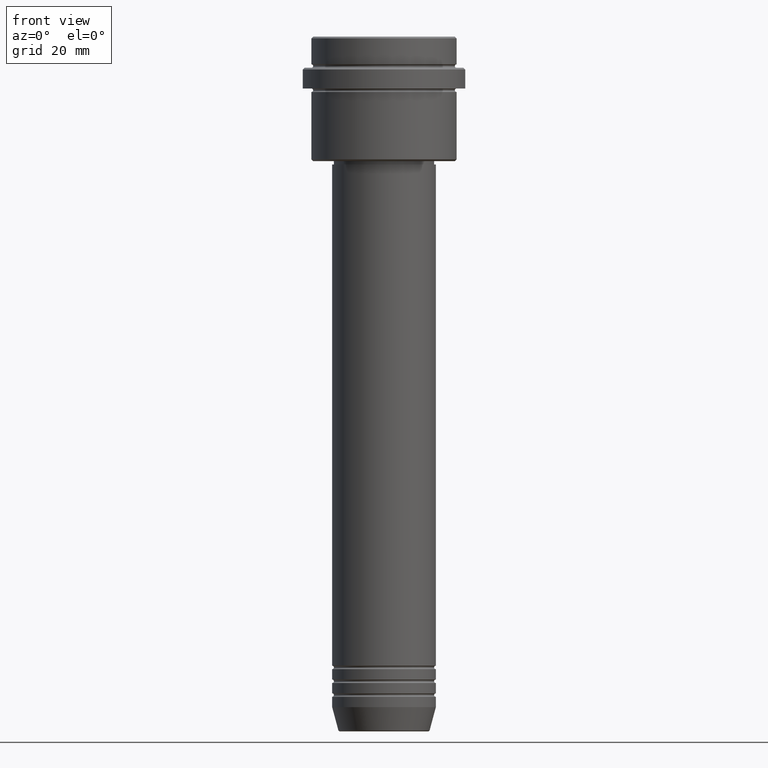
[diagram: clean part render]
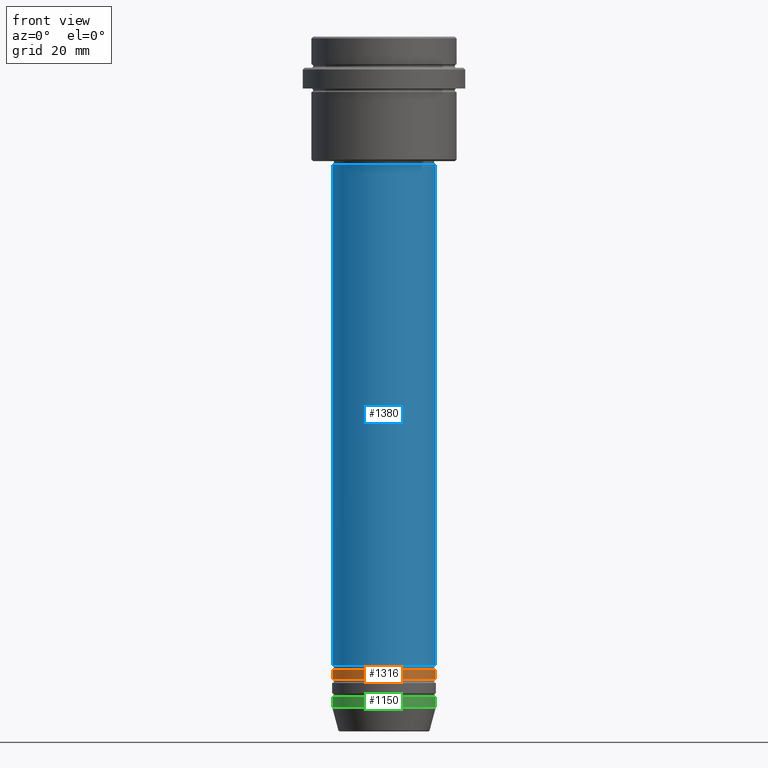
[diagram: same view with three faces highlighted in distinct colors, each labeled with its STEP entity id]
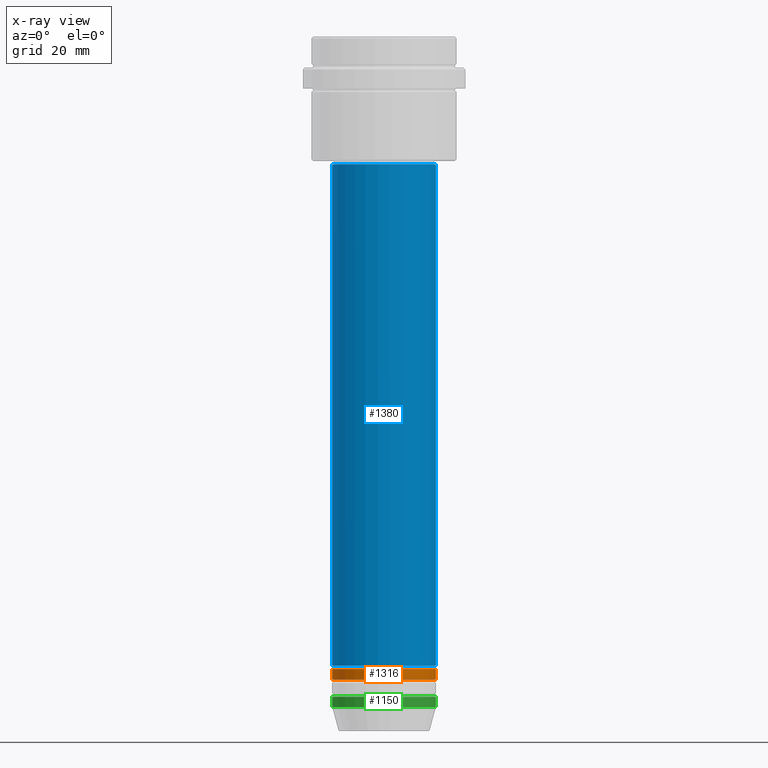
[diagram: x-ray of the same camera — body ghosted, the three highlighted faces saturated]
A machine part, front view with three faces highlighted in distinct colors.
The next image is the same camera in x-ray (body ghosted, the three faces saturated) — at least one of them is partly hidden behind the body in this view.
Their STEP definitions:

[orange] entity #1316 — the highlighted cylindrical surface (partial cylindrical patch) has radius 15 mm, axis along (-0, -0, 1).
#1 = CIRCLE ( 'NONE', #1104, 15.00000000000000000 ) ;
#15 = VERTEX_POINT ( 'NONE', #138 ) ;
#46 = CIRCLE ( 'NONE', #185, 15.00000000000000000 ) ;
#64 = CARTESIAN_POINT ( 'NONE',  ( -15.00000000000000000, 1.836970198721029589E-15, 0.000000000000000000 ) ) ;
#81 = CARTESIAN_POINT ( 'NONE',  ( 0.000000000000000000, 0.000000000000000000, -185.9999999999998863 ) ) ;
#138 = CARTESIAN_POINT ( 'NONE',  ( 15.00000000000000000, 0.000000000000000000, -185.9999999999998863 ) ) ;
#181 = EDGE_CURVE ( 'NONE', #15, #443, #475, .T. ) ;
#185 = AXIS2_PLACEMENT_3D ( 'NONE', #702, #669, #1111 ) ;
#197 = CYLINDRICAL_SURFACE ( 'NONE', #770, 15.00000000000000000 ) ;
#268 = EDGE_LOOP ( 'NONE', ( #381, #1314, #724, #1292 ) ) ;
#349 = CARTESIAN_POINT ( 'NONE',  ( 15.00000000000000000, 0.000000000000000000, -182.9999999999998863 ) ) ;
#381 = ORIENTED_EDGE ( 'NONE', *, *, #1125, .F. ) ;
#405 = LINE ( 'NONE', #64, #1355 ) ;
#443 = VERTEX_POINT ( 'NONE', #349 ) ;
#462 = EDGE_CURVE ( 'NONE', #1007, #443, #46, .T. ) ;
#475 = LINE ( 'NONE', #1059, #1399 ) ;
#497 = DIRECTION ( 'NONE',  ( -0.000000000000000000, -0.000000000000000000, 1.000000000000000000 ) ) ;
#639 = CARTESIAN_POINT ( 'NONE',  ( 0.000000000000000000, 0.000000000000000000, 0.000000000000000000 ) ) ;
#669 = DIRECTION ( 'NONE',  ( -0.000000000000000000, -0.000000000000000000, 1.000000000000000000 ) ) ;
#702 = CARTESIAN_POINT ( 'NONE',  ( 0.000000000000000000, 0.000000000000000000, -182.9999999999998863 ) ) ;
#707 = DIRECTION ( 'NONE',  ( 1.000000000000000000, 0.000000000000000000, 0.000000000000000000 ) ) ;
#724 = ORIENTED_EDGE ( 'NONE', *, *, #181, .T. ) ;
#770 = AXIS2_PLACEMENT_3D ( 'NONE', #639, #977, #1026 ) ;
#977 = DIRECTION ( 'NONE',  ( -0.000000000000000000, -0.000000000000000000, 1.000000000000000000 ) ) ;
#1007 = VERTEX_POINT ( 'NONE', #1064 ) ;
#1026 = DIRECTION ( 'NONE',  ( 1.000000000000000000, 0.000000000000000000, 0.000000000000000000 ) ) ;
#1059 = CARTESIAN_POINT ( 'NONE',  ( 15.00000000000000000, 0.000000000000000000, 0.000000000000000000 ) ) ;
#1062 = EDGE_CURVE ( 'NONE', #1136, #15, #1, .T. ) ;
#1064 = CARTESIAN_POINT ( 'NONE',  ( -15.00000000000000000, 1.836970198721029589E-15, -182.9999999999998863 ) ) ;
#1104 = AXIS2_PLACEMENT_3D ( 'NONE', #81, #1373, #707 ) ;
#1111 = DIRECTION ( 'NONE',  ( 1.000000000000000000, 0.000000000000000000, 0.000000000000000000 ) ) ;
#1125 = EDGE_CURVE ( 'NONE', #1136, #1007, #405, .T. ) ;
#1136 = VERTEX_POINT ( 'NONE', #1282 ) ;
#1142 = DIRECTION ( 'NONE',  ( -0.000000000000000000, -0.000000000000000000, 1.000000000000000000 ) ) ;
#1190 = FACE_OUTER_BOUND ( 'NONE', #268, .T. ) ;
#1282 = CARTESIAN_POINT ( 'NONE',  ( -15.00000000000000000, 1.836970198721029589E-15, -185.9999999999998863 ) ) ;
#1292 = ORIENTED_EDGE ( 'NONE', *, *, #462, .F. ) ;
#1314 = ORIENTED_EDGE ( 'NONE', *, *, #1062, .T. ) ;
#1316 = ADVANCED_FACE ( 'NONE', ( #1190 ), #197, .T. ) ;
#1355 = VECTOR ( 'NONE', #497, 1000.000000000000000 ) ;
#1373 = DIRECTION ( 'NONE',  ( -0.000000000000000000, -0.000000000000000000, 1.000000000000000000 ) ) ;
#1399 = VECTOR ( 'NONE', #1142, 1000.000000000000000 ) ;

[blue] entity #1380 — the highlighted cylindrical surface (partial cylindrical patch) has radius 15 mm, axis along (-0, -0, 1).
#9 = CYLINDRICAL_SURFACE ( 'NONE', #1248, 15.00000000000000000 ) ;
#35 = DIRECTION ( 'NONE',  ( 1.000000000000000000, 0.000000000000000000, 0.000000000000000000 ) ) ;
#113 = LINE ( 'NONE', #1305, #723 ) ;
#128 = CARTESIAN_POINT ( 'NONE',  ( 0.000000000000000000, 0.000000000000000000, 0.000000000000000000 ) ) ;
#158 = CARTESIAN_POINT ( 'NONE',  ( 0.000000000000000000, 0.000000000000000000, -181.9999999999998863 ) ) ;
#198 = DIRECTION ( 'NONE',  ( -0.000000000000000000, -0.000000000000000000, 1.000000000000000000 ) ) ;
#199 = DIRECTION ( 'NONE',  ( -0.000000000000000000, -0.000000000000000000, 1.000000000000000000 ) ) ;
#212 = CARTESIAN_POINT ( 'NONE',  ( -15.00000000000000000, 1.836970198721029589E-15, 0.000000000000000000 ) ) ;
#223 = EDGE_CURVE ( 'NONE', #693, #438, #1307, .T. ) ;
#422 = DIRECTION ( 'NONE',  ( -0.000000000000000000, -0.000000000000000000, 1.000000000000000000 ) ) ;
#428 = VERTEX_POINT ( 'NONE', #1235 ) ;
#438 = VERTEX_POINT ( 'NONE', #1253 ) ;
#482 = ORIENTED_EDGE ( 'NONE', *, *, #671, .F. ) ;
#494 = EDGE_CURVE ( 'NONE', #428, #873, #987, .T. ) ;
#541 = CARTESIAN_POINT ( 'NONE',  ( -15.00000000000000000, 1.836970198721029589E-15, -37.00000000000000711 ) ) ;
#563 = DIRECTION ( 'NONE',  ( -0.000000000000000000, -0.000000000000000000, 1.000000000000000000 ) ) ;
#573 = DIRECTION ( 'NONE',  ( -0.000000000000000000, -0.000000000000000000, 1.000000000000000000 ) ) ;
#584 = AXIS2_PLACEMENT_3D ( 'NONE', #158, #573, #35 ) ;
#607 = LINE ( 'NONE', #212, #1270 ) ;
#671 = EDGE_CURVE ( 'NONE', #428, #693, #607, .T. ) ;
#693 = VERTEX_POINT ( 'NONE', #541 ) ;
#703 = EDGE_CURVE ( 'NONE', #873, #438, #113, .T. ) ;
#723 = VECTOR ( 'NONE', #422, 1000.000000000000000 ) ;
#798 = CARTESIAN_POINT ( 'NONE',  ( 15.00000000000000000, 0.000000000000000000, -181.9999999999998863 ) ) ;
#873 = VERTEX_POINT ( 'NONE', #798 ) ;
#885 = DIRECTION ( 'NONE',  ( 1.000000000000000000, 0.000000000000000000, 0.000000000000000000 ) ) ;
#942 = ORIENTED_EDGE ( 'NONE', *, *, #703, .T. ) ;
#947 = ORIENTED_EDGE ( 'NONE', *, *, #494, .T. ) ;
#987 = CIRCLE ( 'NONE', #584, 15.00000000000000000 ) ;
#998 = FACE_OUTER_BOUND ( 'NONE', #1379, .T. ) ;
#1013 = ORIENTED_EDGE ( 'NONE', *, *, #223, .F. ) ;
#1084 = DIRECTION ( 'NONE',  ( 1.000000000000000000, 0.000000000000000000, 0.000000000000000000 ) ) ;
#1192 = CARTESIAN_POINT ( 'NONE',  ( 0.000000000000000000, 0.000000000000000000, -37.00000000000000711 ) ) ;
#1235 = CARTESIAN_POINT ( 'NONE',  ( -15.00000000000000000, 1.836970198721029589E-15, -181.9999999999998863 ) ) ;
#1248 = AXIS2_PLACEMENT_3D ( 'NONE', #128, #563, #885 ) ;
#1253 = CARTESIAN_POINT ( 'NONE',  ( 15.00000000000000000, 0.000000000000000000, -37.00000000000000711 ) ) ;
#1266 = AXIS2_PLACEMENT_3D ( 'NONE', #1192, #198, #1084 ) ;
#1270 = VECTOR ( 'NONE', #199, 1000.000000000000000 ) ;
#1305 = CARTESIAN_POINT ( 'NONE',  ( 15.00000000000000000, 0.000000000000000000, 0.000000000000000000 ) ) ;
#1307 = CIRCLE ( 'NONE', #1266, 15.00000000000000000 ) ;
#1379 = EDGE_LOOP ( 'NONE', ( #482, #947, #942, #1013 ) ) ;
#1380 = ADVANCED_FACE ( 'NONE', ( #998 ), #9, .T. ) ;

[green] entity #1150 — the highlighted cylindrical surface (partial cylindrical patch) has radius 15 mm, axis along (-0, -0, 1).
#22 = VERTEX_POINT ( 'NONE', #179 ) ;
#94 = LINE ( 'NONE', #532, #927 ) ;
#179 = CARTESIAN_POINT ( 'NONE',  ( 15.00000000000000000, 0.000000000000000000, -191.0000000000000000 ) ) ;
#211 = CYLINDRICAL_SURFACE ( 'NONE', #749, 15.00000000000000000 ) ;
#215 = VERTEX_POINT ( 'NONE', #400 ) ;
#250 = ORIENTED_EDGE ( 'NONE', *, *, #1176, .T. ) ;
#259 = ORIENTED_EDGE ( 'NONE', *, *, #734, .F. ) ;
#279 = CARTESIAN_POINT ( 'NONE',  ( 0.000000000000000000, 0.000000000000000000, -194.0000000000000000 ) ) ;
#299 = CIRCLE ( 'NONE', #1103, 15.00000000000000000 ) ;
#315 = CARTESIAN_POINT ( 'NONE',  ( -15.00000000000000000, 1.836970198721029589E-15, 0.000000000000000000 ) ) ;
#320 = CARTESIAN_POINT ( 'NONE',  ( 15.00000000000000000, 0.000000000000000000, -194.0000000000000000 ) ) ;
#376 = EDGE_LOOP ( 'NONE', ( #259, #1353, #250, #1044 ) ) ;
#380 = DIRECTION ( 'NONE',  ( 1.000000000000000000, 0.000000000000000000, 0.000000000000000000 ) ) ;
#400 = CARTESIAN_POINT ( 'NONE',  ( -15.00000000000000000, 1.836970198721029589E-15, -194.0000000000000000 ) ) ;
#532 = CARTESIAN_POINT ( 'NONE',  ( 15.00000000000000000, 0.000000000000000000, 0.000000000000000000 ) ) ;
#570 = AXIS2_PLACEMENT_3D ( 'NONE', #279, #1057, #380 ) ;
#637 = DIRECTION ( 'NONE',  ( -0.000000000000000000, -0.000000000000000000, 1.000000000000000000 ) ) ;
#734 = EDGE_CURVE ( 'NONE', #215, #1370, #1410, .T. ) ;
#749 = AXIS2_PLACEMENT_3D ( 'NONE', #856, #754, #862 ) ;
#754 = DIRECTION ( 'NONE',  ( -0.000000000000000000, -0.000000000000000000, 1.000000000000000000 ) ) ;
#757 = EDGE_CURVE ( 'NONE', #1370, #22, #299, .T. ) ;
#820 = VERTEX_POINT ( 'NONE', #320 ) ;
#856 = CARTESIAN_POINT ( 'NONE',  ( 0.000000000000000000, 0.000000000000000000, 0.000000000000000000 ) ) ;
#862 = DIRECTION ( 'NONE',  ( 1.000000000000000000, 0.000000000000000000, 0.000000000000000000 ) ) ;
#927 = VECTOR ( 'NONE', #1198, 1000.000000000000000 ) ;
#1008 = CARTESIAN_POINT ( 'NONE',  ( -15.00000000000000000, 1.836970198721029589E-15, -191.0000000000000000 ) ) ;
#1044 = ORIENTED_EDGE ( 'NONE', *, *, #757, .F. ) ;
#1057 = DIRECTION ( 'NONE',  ( -0.000000000000000000, -0.000000000000000000, 1.000000000000000000 ) ) ;
#1089 = CIRCLE ( 'NONE', #570, 15.00000000000000000 ) ;
#1103 = AXIS2_PLACEMENT_3D ( 'NONE', #1405, #637, #1188 ) ;
#1115 = EDGE_CURVE ( 'NONE', #215, #820, #1089, .T. ) ;
#1150 = ADVANCED_FACE ( 'NONE', ( #1207 ), #211, .T. ) ;
#1176 = EDGE_CURVE ( 'NONE', #820, #22, #94, .T. ) ;
#1188 = DIRECTION ( 'NONE',  ( 1.000000000000000000, 0.000000000000000000, 0.000000000000000000 ) ) ;
#1198 = DIRECTION ( 'NONE',  ( -0.000000000000000000, -0.000000000000000000, 1.000000000000000000 ) ) ;
#1206 = DIRECTION ( 'NONE',  ( -0.000000000000000000, -0.000000000000000000, 1.000000000000000000 ) ) ;
#1207 = FACE_OUTER_BOUND ( 'NONE', #376, .T. ) ;
#1219 = VECTOR ( 'NONE', #1206, 1000.000000000000000 ) ;
#1353 = ORIENTED_EDGE ( 'NONE', *, *, #1115, .T. ) ;
#1370 = VERTEX_POINT ( 'NONE', #1008 ) ;
#1405 = CARTESIAN_POINT ( 'NONE',  ( 0.000000000000000000, 0.000000000000000000, -191.0000000000000000 ) ) ;
#1410 = LINE ( 'NONE', #315, #1219 ) ;